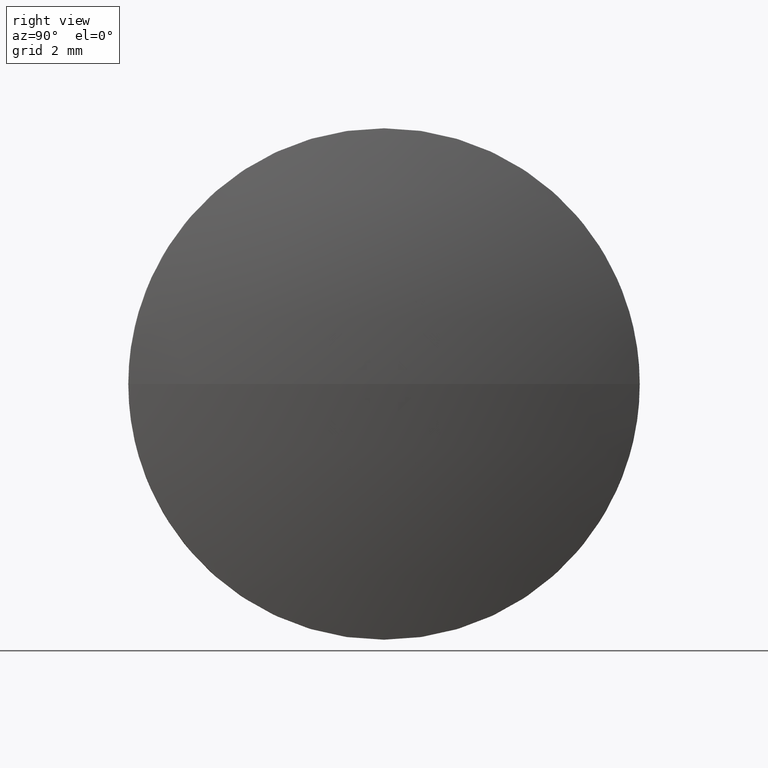
[diagram: clean part render]
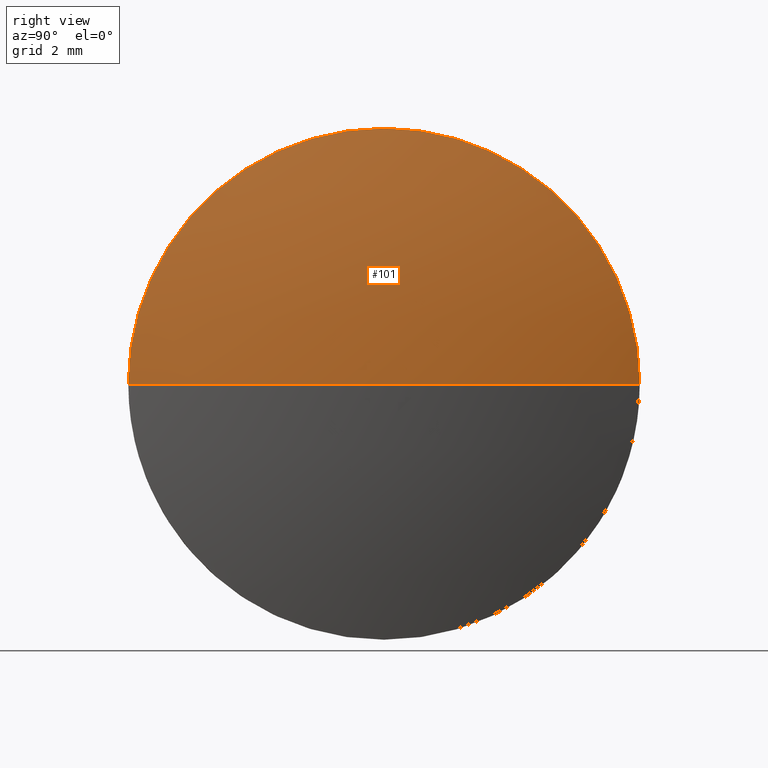
[diagram: same view with one face highlighted and labeled with its STEP entity id]
A machine part, right view. The second image highlights one B-rep face of the part: STEP entity #101.
In plain terms, the highlighted spherical surface has radius 19.9676 mm.
Its self-contained STEP definition (entity closure, byte-faithful):
#3 = DIRECTION ( 'NONE',  ( 0.0000000000000000000, 0.0000000000000000000, 1.000000000000000000 ) ) ;
#4 = DIRECTION ( 'NONE',  ( 0.0000000000000000000, -1.000000000000000000, 0.0000000000000000000 ) ) ;
#5 = EDGE_CURVE ( 'NONE', #102, #23, #133, .T. ) ;
#7 = CIRCLE ( 'NONE', #38, 19.96758150351990600 ) ;
#9 = DIRECTION ( 'NONE',  ( -1.000000000000000000, -0.0000000000000000000, -0.0000000000000000000 ) ) ;
#16 = DIRECTION ( 'NONE',  ( 0.0000000000000000000, -1.224646799147353200E-016, 1.000000000000000000 ) ) ;
#23 = VERTEX_POINT ( 'NONE', #104 ) ;
#27 = DIRECTION ( 'NONE',  ( -1.000000000000000000, 0.0000000000000000000, 0.0000000000000000000 ) ) ;
#28 = AXIS2_PLACEMENT_3D ( 'NONE', #120, #16, #136 ) ;
#29 = ORIENTED_EDGE ( 'NONE', *, *, #77, .F. ) ;
#38 = AXIS2_PLACEMENT_3D ( 'NONE', #107, #119, #27 ) ;
#41 = DIRECTION ( 'NONE',  ( 0.0000000000000000000, 0.0000000000000000000, 1.000000000000000000 ) ) ;
#51 = AXIS2_PLACEMENT_3D ( 'NONE', #74, #114, #97 ) ;
#52 = AXIS2_PLACEMENT_3D ( 'NONE', #145, #9, #3 ) ;
#53 = VERTEX_POINT ( 'NONE', #92 ) ;
#64 = EDGE_LOOP ( 'NONE', ( #29, #105, #135, #118 ) ) ;
#74 = CARTESIAN_POINT ( 'NONE',  ( 508.3369411676876600, 24.74889030591634800, 0.0000000000000000000 ) ) ;
#77 = EDGE_CURVE ( 'NONE', #102, #53, #7, .T. ) ;
#82 = AXIS2_PLACEMENT_3D ( 'NONE', #90, #41, #4 ) ;
#86 = EDGE_CURVE ( 'NONE', #183, #23, #154, .T. ) ;
#90 = CARTESIAN_POINT ( 'NONE',  ( 489.0055079280205100, 24.74889030591642200, 0.0000000000000000000 ) ) ;
#92 = CARTESIAN_POINT ( 'NONE',  ( 508.3369411676876600, 19.74889030591638000, 0.0000000000000000000 ) ) ;
#97 = DIRECTION ( 'NONE',  ( 0.0000000000000000000, 0.0000000000000000000, 1.000000000000000000 ) ) ;
#99 = EDGE_CURVE ( 'NONE', #53, #183, #174, .T. ) ;
#101 = ADVANCED_FACE ( 'NONE', ( #163 ), #111, .T. ) ;
#102 = VERTEX_POINT ( 'NONE', #158 ) ;
#104 = CARTESIAN_POINT ( 'NONE',  ( 508.3369411676876600, 29.74889030591639000, 6.123233995736721900E-016 ) ) ;
#105 = ORIENTED_EDGE ( 'NONE', *, *, #5, .T. ) ;
#107 = CARTESIAN_POINT ( 'NONE',  ( 489.0055079280205100, 24.74889030591642200, 0.0000000000000000000 ) ) ;
#111 = SPHERICAL_SURFACE ( 'NONE', #82, 19.96758150351988400 ) ;
#114 = DIRECTION ( 'NONE',  ( -1.000000000000000000, -0.0000000000000000000, -0.0000000000000000000 ) ) ;
#118 = ORIENTED_EDGE ( 'NONE', *, *, #99, .F. ) ;
#119 = DIRECTION ( 'NONE',  ( 0.0000000000000000000, 0.0000000000000000000, -1.000000000000000000 ) ) ;
#120 = CARTESIAN_POINT ( 'NONE',  ( 489.0055079280205100, 24.74889030591642200, 0.0000000000000000000 ) ) ;
#123 = CARTESIAN_POINT ( 'NONE',  ( 508.3369411676876600, 24.74889030591634800, 5.000000000000000900 ) ) ;
#133 = CIRCLE ( 'NONE', #28, 19.96758150351988400 ) ;
#135 = ORIENTED_EDGE ( 'NONE', *, *, #86, .F. ) ;
#136 = DIRECTION ( 'NONE',  ( 0.0000000000000000000, -1.000000000000000000, -1.224646799147353000E-016 ) ) ;
#145 = CARTESIAN_POINT ( 'NONE',  ( 508.3369411676876600, 24.74889030591634800, 0.0000000000000000000 ) ) ;
#154 = CIRCLE ( 'NONE', #51, 5.000000000000000900 ) ;
#158 = CARTESIAN_POINT ( 'NONE',  ( 508.9730894315404200, 24.74889030591642200, 0.0000000000000000000 ) ) ;
#163 = FACE_OUTER_BOUND ( 'NONE', #64, .T. ) ;
#174 = CIRCLE ( 'NONE', #52, 5.000000000000000900 ) ;
#183 = VERTEX_POINT ( 'NONE', #123 ) ;